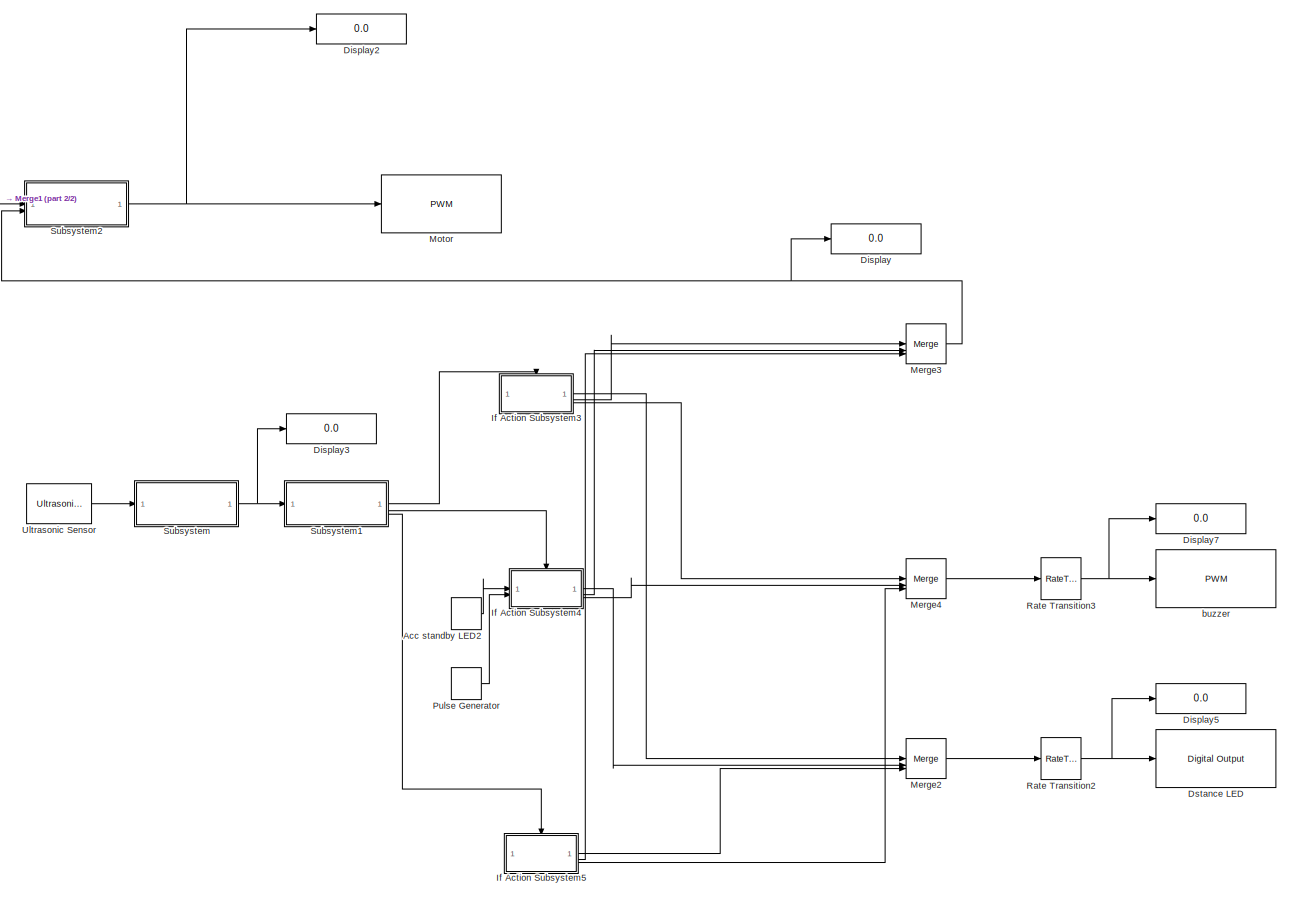
[diagram: root canvas - part 1/2, right side, full height]
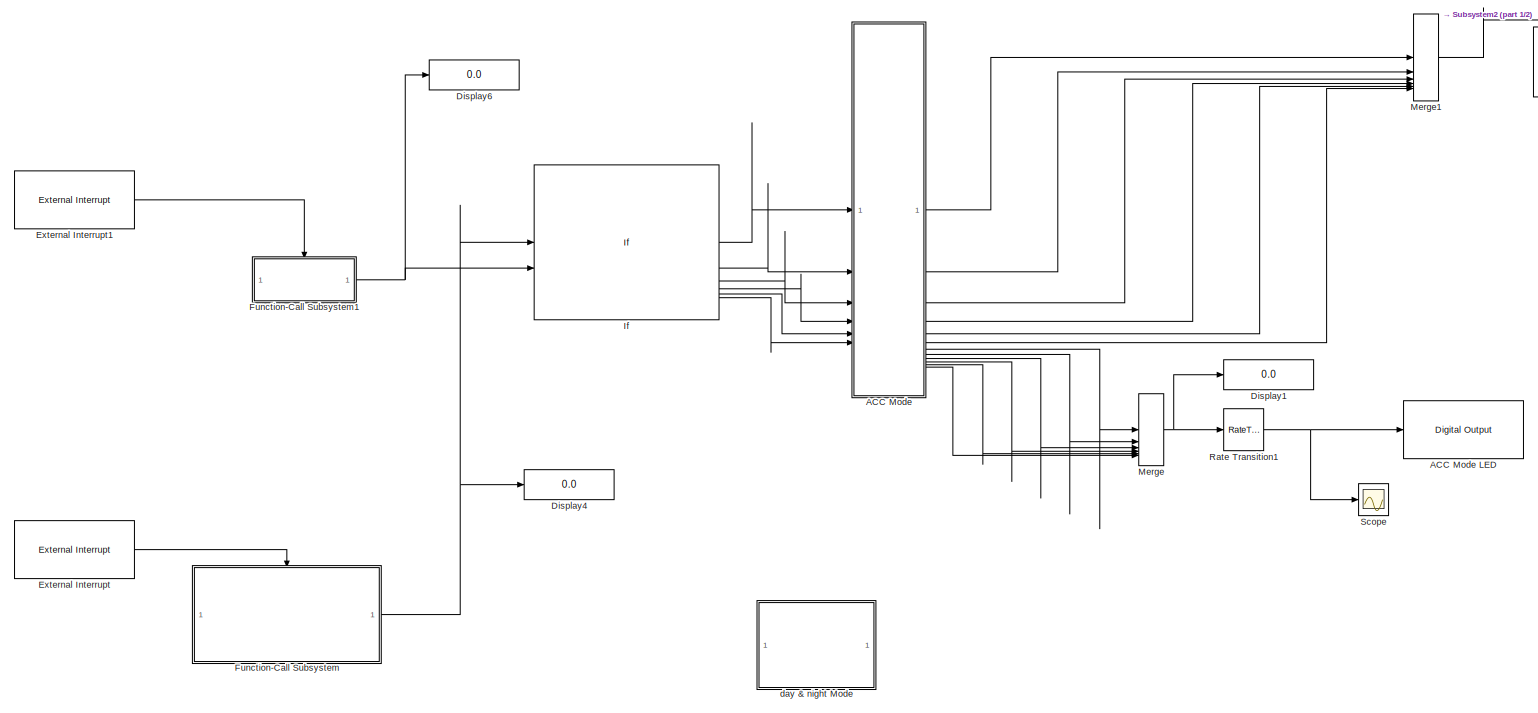
[diagram: root canvas - part 2/2, left side, full height]
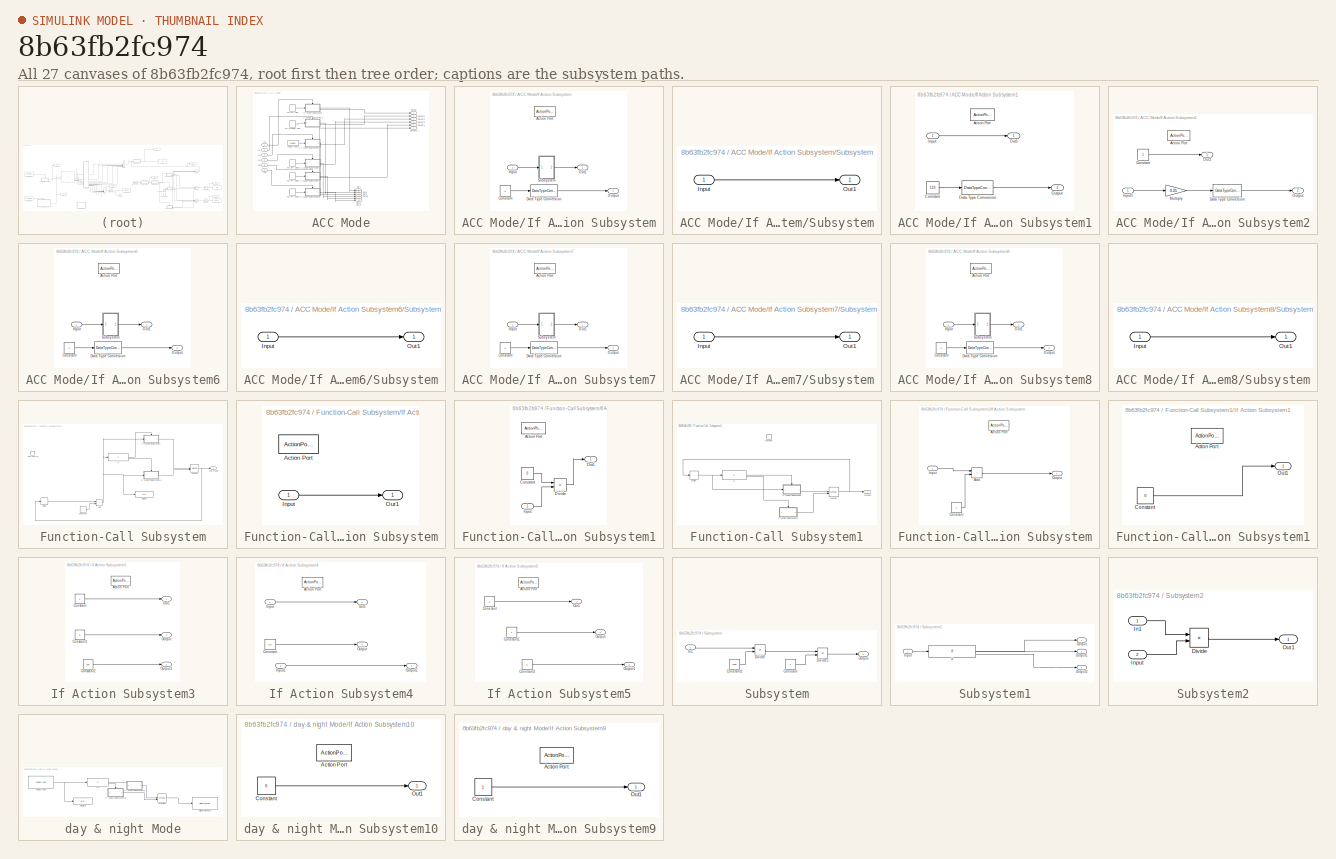
[diagram: thumbnail index - all 27 canvases of the model, root first then tree order]
MODEL slx_8b63fb2fc974
KIND model
CONFIG AbsTol = auto
CONFIG EnableMultiTasking = off
CONFIG FixedStep = auto
CONFIG MaxStep = auto
CONFIG MinStep = auto
CONFIG RelTol = 1e-3
CONFIG SampleTimeConstraint = Unconstrained
CONFIG SolverName = VariableStepAuto
CONFIG StartTime = 0.0
CONFIG StopTime = 10.0
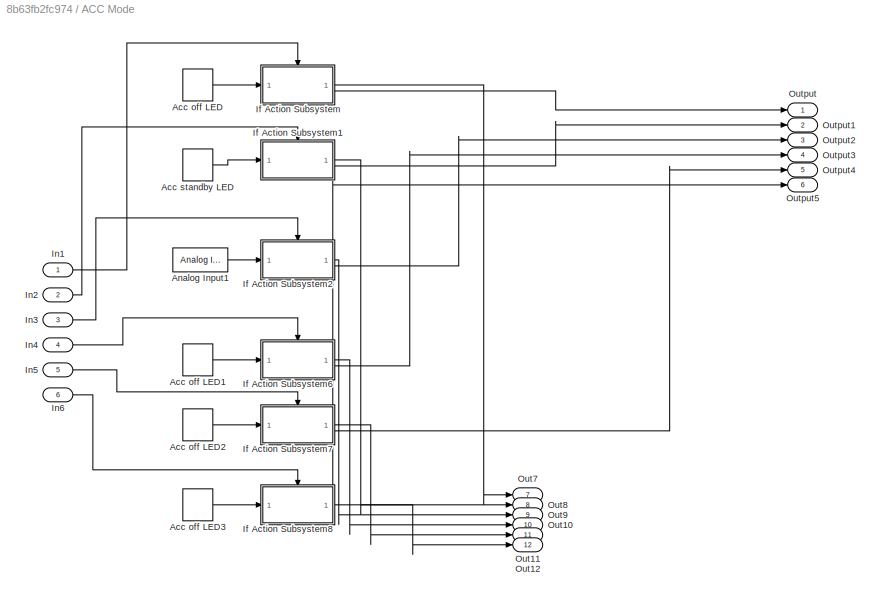
BLOCK [SubSystem] ACC Mode
BLOCK [Reference] ACC Mode LED  REF=arduinolib/Digital Output
  SourceBlock = arduinolib/Digital Output
  SourceType = Arduino Digital Output
BLOCK [DiscretePulseGenerator] ACC Mode/Acc off LED
  PulseType = Time based
  PulseWidth = 50
BLOCK [DiscretePulseGenerator] ACC Mode/Acc off LED1
  PulseType = Time based
  PulseWidth = 50
BLOCK [DiscretePulseGenerator] ACC Mode/Acc off LED2
  PulseType = Time based
  PulseWidth = 50
BLOCK [DiscretePulseGenerator] ACC Mode/Acc off LED3
  PulseType = Time based
  PulseWidth = 50
BLOCK [DiscretePulseGenerator] ACC Mode/Acc standby LED
  Period = 0.4
  PulseType = Time based
  PulseWidth = 50
BLOCK [Reference] ACC Mode/Analog Input1  REF=arduinolib/Analog Input
  SourceBlock = arduinolib/Analog Input
  SourceType = Arduino Analog Input
BLOCK [SubSystem] ACC Mode/If Action Subsystem
  TreatAsAtomicUnit = on
BLOCK [ActionPort] ACC Mode/If Action Subsystem/Action Port
  ActionPortLabel = if((u1 == 0)&(u2 == 0))
BLOCK [Constant] ACC Mode/If Action Subsystem/Constant
  Value = 0
BLOCK [DataTypeConversion] ACC Mode/If Action Subsystem/Data Type Conversion
  OutDataTypeStr = uint8
  RndMeth = Floor
  SaturateOnIntegerOverflow = off
BLOCK [Inport] ACC Mode/If Action Subsystem/Input
BLOCK [Outport] ACC Mode/If Action Subsystem/Out1
BLOCK [Outport] ACC Mode/If Action Subsystem/Output
  Port = 2
BLOCK [SubSystem] ACC Mode/If Action Subsystem/Subsystem
BLOCK [Inport] ACC Mode/If Action Subsystem/Subsystem/Input
BLOCK [Outport] ACC Mode/If Action Subsystem/Subsystem/Out1
BLOCK [SubSystem] ACC Mode/If Action Subsystem1
  TreatAsAtomicUnit = on
BLOCK [ActionPort] ACC Mode/If Action Subsystem1/Action Port
  ActionPortLabel = elseif((u1 == 1)&(u2 == 0))
BLOCK [Constant] ACC Mode/If Action Subsystem1/Constant
  Value = 120
BLOCK [DataTypeConversion] ACC Mode/If Action Subsystem1/Data Type Conversion
  OutDataTypeStr = uint8
  RndMeth = Floor
  SaturateOnIntegerOverflow = off
BLOCK [Inport] ACC Mode/If Action Subsystem1/Input
BLOCK [Outport] ACC Mode/If Action Subsystem1/Out1
BLOCK [Outport] ACC Mode/If Action Subsystem1/Output
  Port = 2
BLOCK [SubSystem] ACC Mode/If Action Subsystem2
  TreatAsAtomicUnit = on
BLOCK [ActionPort] ACC Mode/If Action Subsystem2/Action Port
  ActionPortLabel = elseif((u1 == 2)&(u2 == 0))
BLOCK [Constant] ACC Mode/If Action Subsystem2/Constant
BLOCK [DataTypeConversion] ACC Mode/If Action Subsystem2/Data Type Conversion
  OutDataTypeStr = uint8
  RndMeth = Floor
  SaturateOnIntegerOverflow = off
BLOCK [Inport] ACC Mode/If Action Subsystem2/Input1
BLOCK [Gain] ACC Mode/If Action Subsystem2/Multiply
  Gain = 0.25
BLOCK [Outport] ACC Mode/If Action Subsystem2/Out1
BLOCK [Outport] ACC Mode/If Action Subsystem2/Output
  Port = 2
BLOCK [SubSystem] ACC Mode/If Action Subsystem6
  TreatAsAtomicUnit = on
BLOCK [ActionPort] ACC Mode/If Action Subsystem6/Action Port
  ActionPortLabel = elseif((u1==0)&(u2==1))
BLOCK [Constant] ACC Mode/If Action Subsystem6/Constant
  Value = 0
BLOCK [DataTypeConversion] ACC Mode/If Action Subsystem6/Data Type Conversion
  OutDataTypeStr = uint8
  RndMeth = Floor
  SaturateOnIntegerOverflow = off
BLOCK [Inport] ACC Mode/If Action Subsystem6/Input
BLOCK [Outport] ACC Mode/If Action Subsystem6/Out1
BLOCK [Outport] ACC Mode/If Action Subsystem6/Output
  Port = 2
BLOCK [SubSystem] ACC Mode/If Action Subsystem6/Subsystem
BLOCK [Inport] ACC Mode/If Action Subsystem6/Subsystem/Input
BLOCK [Outport] ACC Mode/If Action Subsystem6/Subsystem/Out1
BLOCK [SubSystem] ACC Mode/If Action Subsystem7
  TreatAsAtomicUnit = on
BLOCK [ActionPort] ACC Mode/If Action Subsystem7/Action Port
  ActionPortLabel = elseif((u1==1)&(u2==1))
BLOCK [Constant] ACC Mode/If Action Subsystem7/Constant
  Value = 0
BLOCK [DataTypeConversion] ACC Mode/If Action Subsystem7/Data Type Conversion
  OutDataTypeStr = uint8
  RndMeth = Floor
  SaturateOnIntegerOverflow = off
BLOCK [Inport] ACC Mode/If Action Subsystem7/Input
BLOCK [Outport] ACC Mode/If Action Subsystem7/Out1
BLOCK [Outport] ACC Mode/If Action Subsystem7/Output
  Port = 2
BLOCK [SubSystem] ACC Mode/If Action Subsystem7/Subsystem
BLOCK [Inport] ACC Mode/If Action Subsystem7/Subsystem/Input
BLOCK [Outport] ACC Mode/If Action Subsystem7/Subsystem/Out1
BLOCK [SubSystem] ACC Mode/If Action Subsystem8
  TreatAsAtomicUnit = on
BLOCK [ActionPort] ACC Mode/If Action Subsystem8/Action Port
  ActionPortLabel = else
BLOCK [Constant] ACC Mode/If Action Subsystem8/Constant
  Value = 0
BLOCK [DataTypeConversion] ACC Mode/If Action Subsystem8/Data Type Conversion
  OutDataTypeStr = uint8
  RndMeth = Floor
  SaturateOnIntegerOverflow = off
BLOCK [Inport] ACC Mode/If Action Subsystem8/Input
BLOCK [Outport] ACC Mode/If Action Subsystem8/Out1
BLOCK [Outport] ACC Mode/If Action Subsystem8/Output
  Port = 2
BLOCK [SubSystem] ACC Mode/If Action Subsystem8/Subsystem
BLOCK [Inport] ACC Mode/If Action Subsystem8/Subsystem/Input
BLOCK [Outport] ACC Mode/If Action Subsystem8/Subsystem/Out1
BLOCK [Inport] ACC Mode/In1
BLOCK [Inport] ACC Mode/In2
  Port = 2
BLOCK [Inport] ACC Mode/In3
  Port = 3
BLOCK [Inport] ACC Mode/In4
  Port = 4
BLOCK [Inport] ACC Mode/In5
  Port = 5
BLOCK [Inport] ACC Mode/In6
  Port = 6
BLOCK [Outport] ACC Mode/Out10
  Port = 10
BLOCK [Outport] ACC Mode/Out11
  Port = 11
BLOCK [Outport] ACC Mode/Out12
  Port = 12
BLOCK [Outport] ACC Mode/Out7
  Port = 7
BLOCK [Outport] ACC Mode/Out8
  Port = 8
BLOCK [Outport] ACC Mode/Out9
  Port = 9
BLOCK [Outport] ACC Mode/Output
BLOCK [Outport] ACC Mode/Output1
  Port = 2
BLOCK [Outport] ACC Mode/Output2
  Port = 3
BLOCK [Outport] ACC Mode/Output3
  Port = 4
BLOCK [Outport] ACC Mode/Output4
  Port = 5
BLOCK [Outport] ACC Mode/Output5
  Port = 6
BLOCK [DiscretePulseGenerator] Acc standby LED2
  Period = 0.4
  PulseType = Time based
  PulseWidth = 50
BLOCK [Display] Display
  Decimation = 1
BLOCK [Display] Display1
  Decimation = 1
BLOCK [Display] Display2
  Decimation = 1
BLOCK [Display] Display3
  Decimation = 1
BLOCK [Display] Display4
  Decimation = 1
BLOCK [Display] Display5
  Decimation = 1
BLOCK [Display] Display6
  Decimation = 1
BLOCK [Display] Display7
  Decimation = 1
BLOCK [Reference] Dstance LED  REF=arduinolib/Digital Output
  SourceBlock = arduinolib/Digital Output
  SourceType = Arduino Digital Output
BLOCK [Reference] External Interrupt  REF=arduinolib/External Interrupt
  SourceBlock = arduinolib/External Interrupt
  SourceType = Arduino Interrupt Block
BLOCK [Reference] External Interrupt1  REF=arduinolib/External Interrupt
  SourceBlock = arduinolib/External Interrupt
  SourceType = Arduino Interrupt Block
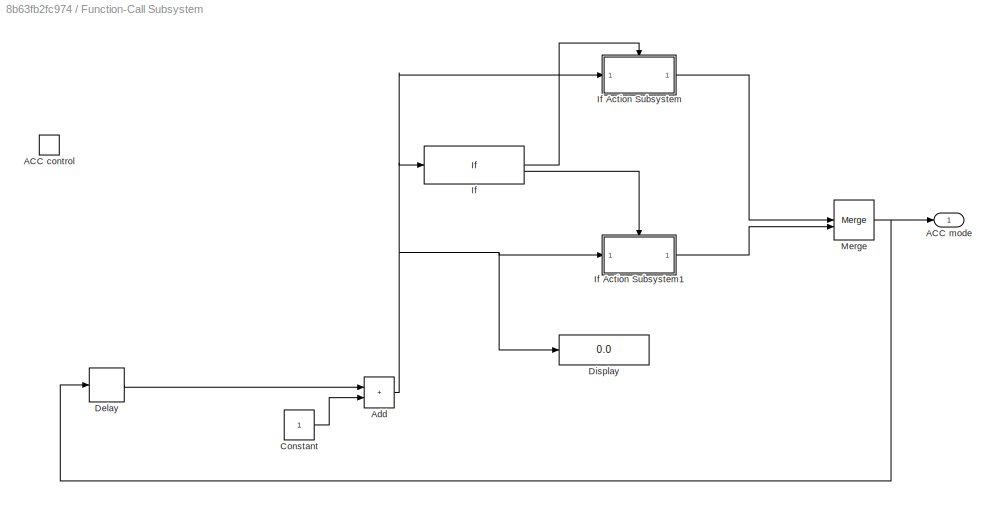
BLOCK [SubSystem] Function-Call Subsystem
  TreatAsAtomicUnit = on
BLOCK [TriggerPort] Function-Call Subsystem/ACC control
  StatesWhenEnabling = held
  TriggerType = function-call
  VariantControl = (inherit)
BLOCK [Outport] Function-Call Subsystem/ACC mode
BLOCK [Sum] Function-Call Subsystem/Add
  IconShape = rectangular
BLOCK [Constant] Function-Call Subsystem/Constant
BLOCK [Delay] Function-Call Subsystem/Delay
  DelayLength = 1
  InputPortMap = u0
BLOCK [Display] Function-Call Subsystem/Display
  Decimation = 1
BLOCK [If] Function-Call Subsystem/If
  IfExpression = u1 <=2
BLOCK [SubSystem] Function-Call Subsystem/If Action Subsystem
  TreatAsAtomicUnit = on
BLOCK [ActionPort] Function-Call Subsystem/If Action Subsystem/Action Port
  ActionPortLabel = if(u1 <=2)
BLOCK [Inport] Function-Call Subsystem/If Action Subsystem/Input
BLOCK [Outport] Function-Call Subsystem/If Action Subsystem/Out1
BLOCK [SubSystem] Function-Call Subsystem/If Action Subsystem1
  TreatAsAtomicUnit = on
BLOCK [ActionPort] Function-Call Subsystem/If Action Subsystem1/Action Port
  ActionPortLabel = else
BLOCK [Constant] Function-Call Subsystem/If Action Subsystem1/Constant
  Value = 0
BLOCK [Product] Function-Call Subsystem/If Action Subsystem1/Divide
  Inputs = **
BLOCK [Inport] Function-Call Subsystem/If Action Subsystem1/Input
BLOCK [Outport] Function-Call Subsystem/If Action Subsystem1/Out1
BLOCK [Merge] Function-Call Subsystem/Merge
BLOCK [SubSystem] Function-Call Subsystem1
  TreatAsAtomicUnit = on
BLOCK [Delay] Function-Call Subsystem1/Delay
  DelayLength = 1
  InputPortMap = u0
BLOCK [If] Function-Call Subsystem1/If
  IfExpression = u1 == 0
BLOCK [SubSystem] Function-Call Subsystem1/If Action Subsystem
  TreatAsAtomicUnit = on
BLOCK [ActionPort] Function-Call Subsystem1/If Action Subsystem/Action Port
  ActionPortLabel = if(u1 == 0)
BLOCK [Sum] Function-Call Subsystem1/If Action Subsystem/Add
  IconShape = rectangular
BLOCK [Constant] Function-Call Subsystem1/If Action Subsystem/Constant
BLOCK [Inport] Function-Call Subsystem1/If Action Subsystem/Input
BLOCK [Outport] Function-Call Subsystem1/If Action Subsystem/Output
BLOCK [SubSystem] Function-Call Subsystem1/If Action Subsystem1
  TreatAsAtomicUnit = on
BLOCK [ActionPort] Function-Call Subsystem1/If Action Subsystem1/Action Port
  ActionPortLabel = else
BLOCK [Constant] Function-Call Subsystem1/If Action Subsystem1/Constant
  Value = 0
BLOCK [Outport] Function-Call Subsystem1/If Action Subsystem1/Out1
BLOCK [Merge] Function-Call Subsystem1/Merge
BLOCK [Outport] Function-Call Subsystem1/Output
BLOCK [TriggerPort] Function-Call Subsystem1/function
  StatesWhenEnabling = held
  TriggerType = function-call
  VariantControl = (inherit)
BLOCK [If] If
  ElseIfExpressions = (u1 == 1)&(u2 == 0),(u1 == 2)&(u2 == 0),(u1==0)&(u2==1),(u1==1)&(u2==1)
  IfExpression = (u1 == 0)&(u2 == 0)
  NumInputs = 2
BLOCK [SubSystem] If Action Subsystem3
  TreatAsAtomicUnit = on
BLOCK [ActionPort] If Action Subsystem3/Action Port
  ActionPortLabel = if(u1 <= 200)
BLOCK [Constant] If Action Subsystem3/Constant
BLOCK [Constant] If Action Subsystem3/Constant1
  Value = 0
BLOCK [Constant] If Action Subsystem3/Constant2
  Value = 200
BLOCK [Outport] If Action Subsystem3/Out1
BLOCK [Outport] If Action Subsystem3/Output
  Port = 2
BLOCK [Outport] If Action Subsystem3/Output1
  Port = 3
BLOCK [SubSystem] If Action Subsystem4
  TreatAsAtomicUnit = on
BLOCK [ActionPort] If Action Subsystem4/Action Port
  ActionPortLabel = elseif(..)
BLOCK [Constant] If Action Subsystem4/Constant
  Value = 0.5
BLOCK [Inport] If Action Subsystem4/Input
BLOCK [Inport] If Action Subsystem4/Input1
  Port = 2
BLOCK [Outport] If Action Subsystem4/Out1
BLOCK [Outport] If Action Subsystem4/Output
  Port = 2
BLOCK [Outport] If Action Subsystem4/Output1
  Port = 3
BLOCK [SubSystem] If Action Subsystem5
  TreatAsAtomicUnit = on
BLOCK [ActionPort] If Action Subsystem5/Action Port
  ActionPortLabel = else
BLOCK [Constant] If Action Subsystem5/Constant
  Value = 0
BLOCK [Constant] If Action Subsystem5/Constant1
BLOCK [Constant] If Action Subsystem5/Constant2
  Value = 0
BLOCK [Outport] If Action Subsystem5/Out1
BLOCK [Outport] If Action Subsystem5/Output
  Port = 2
BLOCK [Outport] If Action Subsystem5/Output1
  Port = 3
BLOCK [Merge] Merge
  Inputs = 6
BLOCK [Merge] Merge1
  Inputs = 6
BLOCK [Merge] Merge2
  Inputs = 3
BLOCK [Merge] Merge3
  Inputs = 3
BLOCK [Merge] Merge4
  Inputs = 3
BLOCK [Reference] Motor  REF=arduinolib/PWM
  SourceBlock = arduinolib/PWM
  SourceType = Arduino PWM
BLOCK [DiscretePulseGenerator] Pulse Generator
  Amplitude = 200
  PulseType = Time based
  PulseWidth = 50
BLOCK [RateTransition] Rate Transition1
  Deterministic = off
BLOCK [RateTransition] Rate Transition2
  Deterministic = off
BLOCK [RateTransition] Rate Transition3
  Deterministic = off
BLOCK [Scope] Scope
  Floating = off
  NumInputPorts = 1
  ScopeSpecificationString = Simulink.scopes.TimeScopeBlockCfg('CurrentConfiguration', extmgr.ConfigurationSet(extmgr.Configuration('Core','General UI',true),extmgr.Configuration('Core','Source UI',true),extmgr.Configuration('Sources','WiredSimulink',true),extmgr.Configuration('Visuals','Time Domain',true,'SerializedDisplays',{struct('MinYLimReal','-0.125','MaxYLimReal','1.125','YLabelReal','','MinYLimMag','0.00000','MaxYLimM...<+1392ch>
BLOCK [SubSystem] Subsystem
BLOCK [Constant] Subsystem/Constant
  Value = 2
BLOCK [Constant] Subsystem/Constant1
  Value = 3400
BLOCK [Product] Subsystem/Divide
  Inputs = **
BLOCK [Product] Subsystem/Divide1
  Inputs = */
BLOCK [Inport] Subsystem/In1
BLOCK [Outport] Subsystem/Output
BLOCK [SubSystem] Subsystem1
BLOCK [If] Subsystem1/If
  ElseIfExpressions = (u1>=250)&(u1<=800)
  IfExpression = u1 <= 200
BLOCK [Inport] Subsystem1/Input
BLOCK [Outport] Subsystem1/Output
BLOCK [Outport] Subsystem1/Output1
  Port = 2
BLOCK [Outport] Subsystem1/Output2
  Port = 3
BLOCK [SubSystem] Subsystem2
BLOCK [Product] Subsystem2/Divide
  Inputs = **
BLOCK [Inport] Subsystem2/In1
BLOCK [Inport] Subsystem2/Input
  Port = 2
BLOCK [Outport] Subsystem2/Out1
BLOCK [Reference] Ultrasonic Sensor  REF=arduinosensorlib/Ultrasonic Sensor
  SourceBlock = arduinosensorlib/Ultrasonic Sensor
  SourceType = Arduino Ultrasonic Sensor
BLOCK [Reference] buzzer  REF=arduinolib/PWM
  SourceBlock = arduinolib/PWM
  SourceType = Arduino PWM
BLOCK [SubSystem] day & night Mode
BLOCK [Reference] day & night Mode/Analog Input  REF=arduinolib/Analog Input
  SourceBlock = arduinolib/Analog Input
  SourceType = Arduino Analog Input
BLOCK [Reference] day & night Mode/Digital Output3  REF=arduinolib/Digital Output
  SourceBlock = arduinolib/Digital Output
  SourceType = Arduino Digital Output
BLOCK [Display] day & night Mode/Display8
  Decimation = 1
BLOCK [SubSystem] day & night Mode/If Action Subsystem10
  TreatAsAtomicUnit = on
BLOCK [ActionPort] day & night Mode/If Action Subsystem10/Action Port
  ActionPortLabel = else
BLOCK [Constant] day & night Mode/If Action Subsystem10/Constant
  Value = 0
BLOCK [Outport] day & night Mode/If Action Subsystem10/Out1
BLOCK [SubSystem] day & night Mode/If Action Subsystem9
  TreatAsAtomicUnit = on
BLOCK [ActionPort] day & night Mode/If Action Subsystem9/Action Port
  ActionPortLabel = if(u1 < 250)
BLOCK [Constant] day & night Mode/If Action Subsystem9/Constant
BLOCK [Outport] day & night Mode/If Action Subsystem9/Out1
BLOCK [If] day & night Mode/If1
  IfExpression = u1 < 250
BLOCK [Merge] day & night Mode/Merge5
LINE ACC Mode/Acc off LED1:1 -> ACC Mode/If Action Subsystem6:1
LINE ACC Mode/Acc off LED2:1 -> ACC Mode/If Action Subsystem7:1
LINE ACC Mode/Acc off LED3:1 -> ACC Mode/If Action Subsystem8:1
LINE ACC Mode/Acc off LED:1 -> ACC Mode/If Action Subsystem:1
LINE ACC Mode/Acc standby LED:1 -> ACC Mode/If Action Subsystem1:1
LINE ACC Mode/Analog Input1:1 -> ACC Mode/If Action Subsystem2:1
LINE ACC Mode/If Action Subsystem/Constant:1 -> ACC Mode/If Action Subsystem/Data Type Conversion:1
LINE ACC Mode/If Action Subsystem/Data Type Conversion:1 -> ACC Mode/If Action Subsystem/Output:1
LINE ACC Mode/If Action Subsystem/Input:1 -> ACC Mode/If Action Subsystem/Subsystem:1
LINE ACC Mode/If Action Subsystem/Subsystem/Input:1 -> ACC Mode/If Action Subsystem/Subsystem/Out1:1
LINE ACC Mode/If Action Subsystem/Subsystem:1 -> ACC Mode/If Action Subsystem/Out1:1
LINE ACC Mode/If Action Subsystem1/Constant:1 -> ACC Mode/If Action Subsystem1/Data Type Conversion:1
LINE ACC Mode/If Action Subsystem1/Data Type Conversion:1 -> ACC Mode/If Action Subsystem1/Output:1
LINE ACC Mode/If Action Subsystem1/Input:1 -> ACC Mode/If Action Subsystem1/Out1:1
LINE ACC Mode/If Action Subsystem1:1 -> ACC Mode/Out8:1
LINE ACC Mode/If Action Subsystem1:2 -> ACC Mode/Output1:1
LINE ACC Mode/If Action Subsystem2/Constant:1 -> ACC Mode/If Action Subsystem2/Out1:1
LINE ACC Mode/If Action Subsystem2/Data Type Conversion:1 -> ACC Mode/If Action Subsystem2/Output:1
LINE ACC Mode/If Action Subsystem2/Input1:1 -> ACC Mode/If Action Subsystem2/Multiply:1
LINE ACC Mode/If Action Subsystem2/Multiply:1 -> ACC Mode/If Action Subsystem2/Data Type Conversion:1
LINE ACC Mode/If Action Subsystem2:1 -> ACC Mode/Out9:1
LINE ACC Mode/If Action Subsystem2:2 -> ACC Mode/Output2:1
LINE ACC Mode/If Action Subsystem6/Constant:1 -> ACC Mode/If Action Subsystem6/Data Type Conversion:1
LINE ACC Mode/If Action Subsystem6/Data Type Conversion:1 -> ACC Mode/If Action Subsystem6/Output:1
LINE ACC Mode/If Action Subsystem6/Input:1 -> ACC Mode/If Action Subsystem6/Subsystem:1
LINE ACC Mode/If Action Subsystem6/Subsystem/Input:1 -> ACC Mode/If Action Subsystem6/Subsystem/Out1:1
LINE ACC Mode/If Action Subsystem6/Subsystem:1 -> ACC Mode/If Action Subsystem6/Out1:1
LINE ACC Mode/If Action Subsystem6:1 -> ACC Mode/Out10:1
LINE ACC Mode/If Action Subsystem6:2 -> ACC Mode/Output3:1
LINE ACC Mode/If Action Subsystem7/Constant:1 -> ACC Mode/If Action Subsystem7/Data Type Conversion:1
LINE ACC Mode/If Action Subsystem7/Data Type Conversion:1 -> ACC Mode/If Action Subsystem7/Output:1
LINE ACC Mode/If Action Subsystem7/Input:1 -> ACC Mode/If Action Subsystem7/Subsystem:1
LINE ACC Mode/If Action Subsystem7/Subsystem/Input:1 -> ACC Mode/If Action Subsystem7/Subsystem/Out1:1
LINE ACC Mode/If Action Subsystem7/Subsystem:1 -> ACC Mode/If Action Subsystem7/Out1:1
LINE ACC Mode/If Action Subsystem7:1 -> ACC Mode/Out11:1
LINE ACC Mode/If Action Subsystem7:2 -> ACC Mode/Output4:1
LINE ACC Mode/If Action Subsystem8/Constant:1 -> ACC Mode/If Action Subsystem8/Data Type Conversion:1
LINE ACC Mode/If Action Subsystem8/Data Type Conversion:1 -> ACC Mode/If Action Subsystem8/Output:1
LINE ACC Mode/If Action Subsystem8/Input:1 -> ACC Mode/If Action Subsystem8/Subsystem:1
LINE ACC Mode/If Action Subsystem8/Subsystem/Input:1 -> ACC Mode/If Action Subsystem8/Subsystem/Out1:1
LINE ACC Mode/If Action Subsystem8/Subsystem:1 -> ACC Mode/If Action Subsystem8/Out1:1
LINE ACC Mode/If Action Subsystem8:1 -> ACC Mode/Out12:1
LINE ACC Mode/If Action Subsystem8:2 -> ACC Mode/Output5:1
LINE ACC Mode/If Action Subsystem:1 -> ACC Mode/Out7:1
LINE ACC Mode/If Action Subsystem:2 -> ACC Mode/Output:1
LINE ACC Mode/In1:1 -> ACC Mode/If Action Subsystem:ifaction
LINE ACC Mode/In2:1 -> ACC Mode/If Action Subsystem1:ifaction
LINE ACC Mode/In3:1 -> ACC Mode/If Action Subsystem2:ifaction
LINE ACC Mode/In4:1 -> ACC Mode/If Action Subsystem6:ifaction
LINE ACC Mode/In5:1 -> ACC Mode/If Action Subsystem7:ifaction
LINE ACC Mode/In6:1 -> ACC Mode/If Action Subsystem8:ifaction
LINE ACC Mode:1 -> Merge1:1
LINE ACC Mode:10 -> Merge:4
LINE ACC Mode:11 -> Merge:5
LINE ACC Mode:12 -> Merge:6
LINE ACC Mode:2 -> Merge1:2
LINE ACC Mode:3 -> Merge1:3
LINE ACC Mode:4 -> Merge1:4
LINE ACC Mode:5 -> Merge1:5
LINE ACC Mode:6 -> Merge1:6
LINE ACC Mode:7 -> Merge:1
LINE ACC Mode:8 -> Merge:2
LINE ACC Mode:9 -> Merge:3
LINE Acc standby LED2:1 -> If Action Subsystem4:1
LINE External Interrupt1:1 -> Function-Call Subsystem1:trigger
LINE External Interrupt:1 -> Function-Call Subsystem:trigger
NET Function-Call Subsystem/Add:1 -> Function-Call Subsystem/Display:1, Function-Call Subsystem/If Action Subsystem1:1, Function-Call Subsystem/If Action Subsystem:1, Function-Call Subsystem/If:1
LINE Function-Call Subsystem/Constant:1 -> Function-Call Subsystem/Add:2
LINE Function-Call Subsystem/Delay:1 -> Function-Call Subsystem/Add:1
LINE Function-Call Subsystem/If Action Subsystem/Input:1 -> Function-Call Subsystem/If Action Subsystem/Out1:1
LINE Function-Call Subsystem/If Action Subsystem1/Constant:1 -> Function-Call Subsystem/If Action Subsystem1/Divide:1
LINE Function-Call Subsystem/If Action Subsystem1/Divide:1 -> Function-Call Subsystem/If Action Subsystem1/Out1:1
LINE Function-Call Subsystem/If Action Subsystem1/Input:1 -> Function-Call Subsystem/If Action Subsystem1/Divide:2
LINE Function-Call Subsystem/If Action Subsystem1:1 -> Function-Call Subsystem/Merge:2
LINE Function-Call Subsystem/If Action Subsystem:1 -> Function-Call Subsystem/Merge:1
LINE Function-Call Subsystem/If:1 -> Function-Call Subsystem/If Action Subsystem:ifaction
LINE Function-Call Subsystem/If:2 -> Function-Call Subsystem/If Action Subsystem1:ifaction
NET Function-Call Subsystem/Merge:1 -> Function-Call Subsystem/ACC mode:1, Function-Call Subsystem/Delay:1
NET Function-Call Subsystem1/Delay:1 -> Function-Call Subsystem1/If Action Subsystem:1, Function-Call Subsystem1/If:1
LINE Function-Call Subsystem1/If Action Subsystem/Add:1 -> Function-Call Subsystem1/If Action Subsystem/Output:1
LINE Function-Call Subsystem1/If Action Subsystem/Constant:1 -> Function-Call Subsystem1/If Action Subsystem/Add:2
LINE Function-Call Subsystem1/If Action Subsystem/Input:1 -> Function-Call Subsystem1/If Action Subsystem/Add:1
LINE Function-Call Subsystem1/If Action Subsystem1/Constant:1 -> Function-Call Subsystem1/If Action Subsystem1/Out1:1
LINE Function-Call Subsystem1/If Action Subsystem1:1 -> Function-Call Subsystem1/Merge:2
LINE Function-Call Subsystem1/If Action Subsystem:1 -> Function-Call Subsystem1/Merge:1
LINE Function-Call Subsystem1/If:1 -> Function-Call Subsystem1/If Action Subsystem:ifaction
LINE Function-Call Subsystem1/If:2 -> Function-Call Subsystem1/If Action Subsystem1:ifaction
NET Function-Call Subsystem1/Merge:1 -> Function-Call Subsystem1/Delay:1, Function-Call Subsystem1/Output:1
NET Function-Call Subsystem1:1 -> Display6:1, If:2
NET Function-Call Subsystem:1 -> Display4:1, If:1
LINE If Action Subsystem3/Constant1:1 -> If Action Subsystem3/Output:1
LINE If Action Subsystem3/Constant2:1 -> If Action Subsystem3/Output1:1
LINE If Action Subsystem3/Constant:1 -> If Action Subsystem3/Out1:1
LINE If Action Subsystem3:1 -> Merge2:1
LINE If Action Subsystem3:2 -> Merge3:1
LINE If Action Subsystem3:3 -> Merge4:1
LINE If Action Subsystem4/Constant:1 -> If Action Subsystem4/Output:1
LINE If Action Subsystem4/Input1:1 -> If Action Subsystem4/Output1:1
LINE If Action Subsystem4/Input:1 -> If Action Subsystem4/Out1:1
LINE If Action Subsystem4:1 -> Merge2:2
LINE If Action Subsystem4:2 -> Merge3:2
LINE If Action Subsystem4:3 -> Merge4:2
LINE If Action Subsystem5/Constant1:1 -> If Action Subsystem5/Output:1
LINE If Action Subsystem5/Constant2:1 -> If Action Subsystem5/Output1:1
LINE If Action Subsystem5/Constant:1 -> If Action Subsystem5/Out1:1
LINE If Action Subsystem5:1 -> Merge2:3
LINE If Action Subsystem5:2 -> Merge3:3
LINE If Action Subsystem5:3 -> Merge4:3
LINE If:1 -> ACC Mode:1
LINE If:2 -> ACC Mode:2
LINE If:3 -> ACC Mode:3
LINE If:4 -> ACC Mode:4
LINE If:5 -> ACC Mode:5
LINE If:6 -> ACC Mode:6
LINE Merge1:1 -> Subsystem2:1
LINE Merge2:1 -> Rate Transition2:1
NET Merge3:1 -> Display:1, Subsystem2:2
LINE Merge4:1 -> Rate Transition3:1
NET Merge:1 -> Display1:1, Rate Transition1:1
LINE Pulse Generator:1 -> If Action Subsystem4:2
NET Rate Transition1:1 -> ACC Mode LED:1, Scope:1
NET Rate Transition2:1 -> Display5:1, Dstance LED:1
NET Rate Transition3:1 -> Display7:1, buzzer:1
LINE Subsystem/Constant1:1 -> Subsystem/Divide:2
LINE Subsystem/Constant:1 -> Subsystem/Divide1:2
LINE Subsystem/Divide1:1 -> Subsystem/Output:1
LINE Subsystem/Divide:1 -> Subsystem/Divide1:1
LINE Subsystem/In1:1 -> Subsystem/Divide:1
LINE Subsystem1/If:1 -> Subsystem1/Output:1
LINE Subsystem1/If:2 -> Subsystem1/Output1:1
LINE Subsystem1/If:3 -> Subsystem1/Output2:1
LINE Subsystem1/Input:1 -> Subsystem1/If:1
LINE Subsystem1:1 -> If Action Subsystem3:ifaction
LINE Subsystem1:2 -> If Action Subsystem4:ifaction
LINE Subsystem1:3 -> If Action Subsystem5:ifaction
LINE Subsystem2/Divide:1 -> Subsystem2/Out1:1
LINE Subsystem2/In1:1 -> Subsystem2/Divide:1
LINE Subsystem2/Input:1 -> Subsystem2/Divide:2
NET Subsystem2:1 -> Display2:1, Motor:1
NET Subsystem:1 -> Display3:1, Subsystem1:1
LINE Ultrasonic Sensor:1 -> Subsystem:1
NET day & night Mode/Analog Input:1 -> day & night Mode/Display8:1, day & night Mode/If1:1
LINE day & night Mode/If Action Subsystem10/Constant:1 -> day & night Mode/If Action Subsystem10/Out1:1
LINE day & night Mode/If Action Subsystem10:1 -> day & night Mode/Merge5:2
LINE day & night Mode/If Action Subsystem9/Constant:1 -> day & night Mode/If Action Subsystem9/Out1:1
LINE day & night Mode/If Action Subsystem9:1 -> day & night Mode/Merge5:1
LINE day & night Mode/If1:1 -> day & night Mode/If Action Subsystem9:ifaction
LINE day & night Mode/If1:2 -> day & night Mode/If Action Subsystem10:ifaction
LINE day & night Mode/Merge5:1 -> day & night Mode/Digital Output3:1
note: NET lines group one-source signal fan-out (src -> all destinations, sorted); 1:1 wires keep LINE
